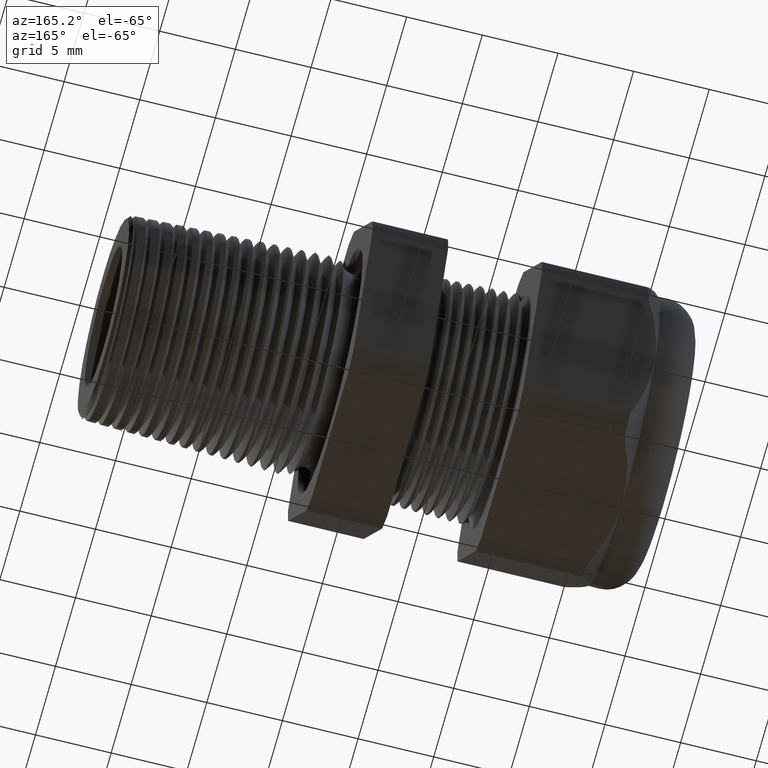
[diagram: clean part render]
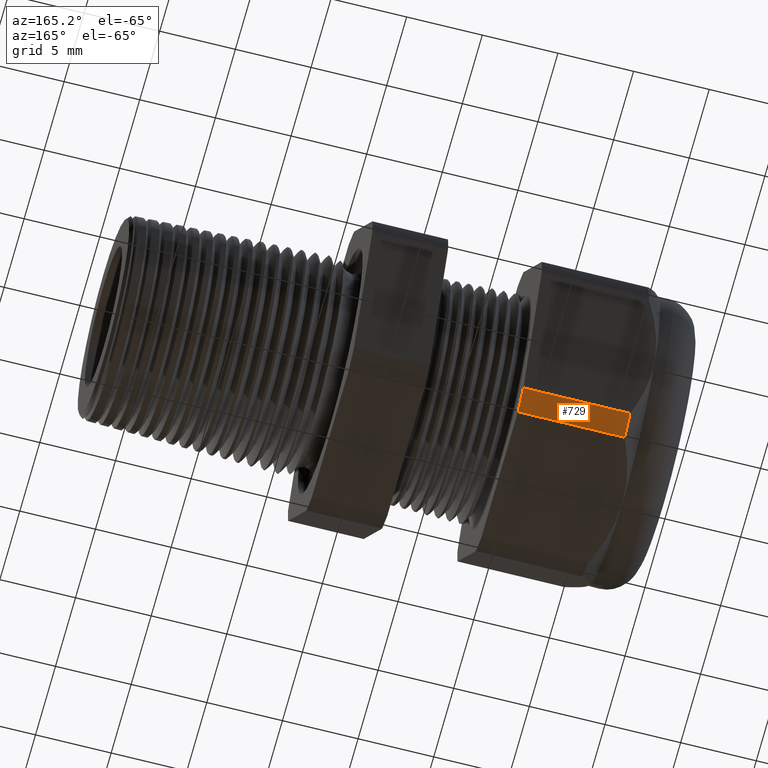
[diagram: same view with one face highlighted and labeled with its STEP entity id]
A machine part, auxiliary view. The second image highlights one B-rep face of the part: STEP entity #729.
In plain terms, the highlighted cylindrical surface (partial cylindrical patch) has radius 10.5727 mm, axis along (-1, 0, 0).
Its self-contained STEP definition (entity closure, byte-faithful):
#705 = ORIENTED_EDGE ( 'NONE', *, *, #706, .T. ) ;
#706 = EDGE_CURVE ( 'NONE', #723, #707, #3313, .T. ) ;
#707 = VERTEX_POINT ( 'NONE', #3308 ) ;
#708 = ORIENTED_EDGE ( 'NONE', *, *, #709, .F. ) ;
#709 = EDGE_CURVE ( 'NONE', #710, #707, #3307, .T. ) ;
#710 = VERTEX_POINT ( 'NONE', #3303 ) ;
#711 = ORIENTED_EDGE ( 'NONE', *, *, #712, .F. ) ;
#712 = EDGE_CURVE ( 'NONE', #726, #710, #3302, .T. ) ;
#723 = VERTEX_POINT ( 'NONE', #3332 ) ;
#725 = EDGE_CURVE ( 'NONE', #726, #723, #3334, .T. ) ;
#726 = VERTEX_POINT ( 'NONE', #3320 ) ;
#729 = ADVANCED_FACE ( 'NONE', ( #3315 ), #3314, .T. ) ;
#730 = EDGE_LOOP ( 'NONE', ( #731, #705, #708, #711 ) ) ;
#731 = ORIENTED_EDGE ( 'NONE', *, *, #725, .T. ) ;
#3298 = DIRECTION ( 'NONE',  ( 0.0000000000000000000, 0.0000000000000000000, -1.000000000000000000 ) ) ;
#3299 = DIRECTION ( 'NONE',  ( 1.000000000000000000, 0.0000000000000000000, 0.0000000000000000000 ) ) ;
#3300 = CARTESIAN_POINT ( 'NONE',  ( -0.7508661417322833900, 0.0000000000000000000, 0.0000000000000000000 ) ) ;
#3301 = AXIS2_PLACEMENT_3D ( 'NONE', #3300, #3299, #3298 ) ;
#3302 = CIRCLE ( 'NONE', #3301, 0.4162500000000000100 ) ;
#3303 = CARTESIAN_POINT ( 'NONE',  ( -0.7508661417322833900, 0.2344281053908202900, -0.3439586107409879900 ) ) ;
#3304 = DIRECTION ( 'NONE',  ( -1.000000000000000000, 0.0000000000000000000, 0.0000000000000000000 ) ) ;
#3305 = VECTOR ( 'NONE', #3304, 39.37007874015748100 ) ;
#3306 = CARTESIAN_POINT ( 'NONE',  ( 0.2800000000000000300, 0.2344281053908202900, -0.3439586107409879900 ) ) ;
#3307 = LINE ( 'NONE', #3306, #3305 ) ;
#3308 = CARTESIAN_POINT ( 'NONE',  ( -1.028513779527559000, 0.2344281053908203200, -0.3439586107409879900 ) ) ;
#3309 = DIRECTION ( 'NONE',  ( 0.0000000000000000000, 0.0000000000000000000, -1.000000000000000000 ) ) ;
#3310 = DIRECTION ( 'NONE',  ( 1.000000000000000000, 0.0000000000000000000, 0.0000000000000000000 ) ) ;
#3311 = CARTESIAN_POINT ( 'NONE',  ( -1.028513779527559200, 0.0000000000000000000, 0.0000000000000000000 ) ) ;
#3312 = AXIS2_PLACEMENT_3D ( 'NONE', #3311, #3310, #3309 ) ;
#3313 = CIRCLE ( 'NONE', #3312, 0.4162500000000000100 ) ;
#3314 = CYLINDRICAL_SURFACE ( 'NONE', #3377, 0.4162500000000000100 ) ;
#3315 = FACE_OUTER_BOUND ( 'NONE', #730, .T. ) ;
#3320 = CARTESIAN_POINT ( 'NONE',  ( -0.7508661417322833900, 0.1806628420566884800, -0.3750000000000001100 ) ) ;
#3321 = DIRECTION ( 'NONE',  ( -1.000000000000000000, 0.0000000000000000000, 0.0000000000000000000 ) ) ;
#3322 = VECTOR ( 'NONE', #3321, 39.37007874015748100 ) ;
#3323 = CARTESIAN_POINT ( 'NONE',  ( 0.2800000000000000300, 0.1806628420566884800, -0.3750000000000001100 ) ) ;
#3332 = CARTESIAN_POINT ( 'NONE',  ( -1.028513779527559200, 0.1806628420566884200, -0.3750000000000000600 ) ) ;
#3334 = LINE ( 'NONE', #3323, #3322 ) ;
#3374 = DIRECTION ( 'NONE',  ( 0.0000000000000000000, 0.0000000000000000000, 1.000000000000000000 ) ) ;
#3375 = DIRECTION ( 'NONE',  ( -1.000000000000000000, 0.0000000000000000000, 0.0000000000000000000 ) ) ;
#3376 = CARTESIAN_POINT ( 'NONE',  ( 0.2800000000000000300, 0.0000000000000000000, 0.0000000000000000000 ) ) ;
#3377 = AXIS2_PLACEMENT_3D ( 'NONE', #3376, #3375, #3374 ) ;